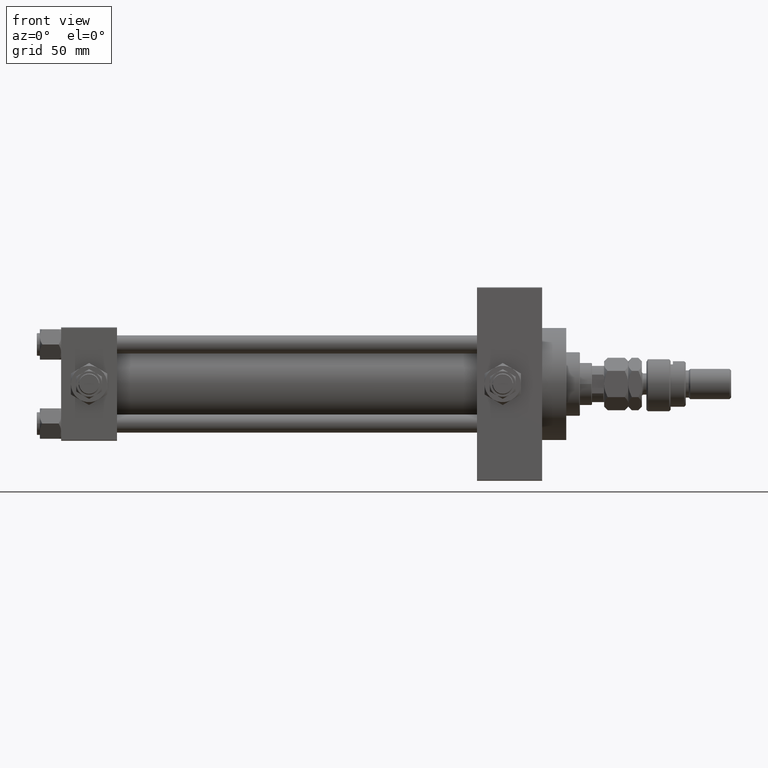
[diagram: clean part render]
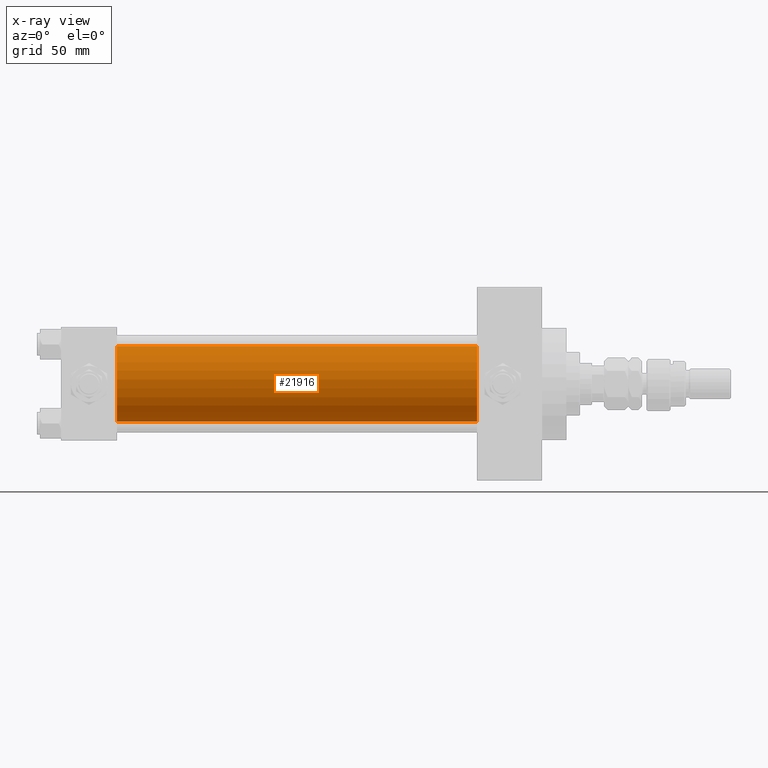
[diagram: x-ray — body ghosted, one internal face saturated and labeled with its STEP entity id]
A machine part, front view, then the same camera in x-ray: the body is ghosted and one INTERNAL B-rep face — a face not visible from any outside direction — is saturated and labeled: STEP entity #21916.
In plain terms, the highlighted cylindrical surface (partial cylindrical patch) has radius 25 mm, axis along (-1, -0, -0).
Its self-contained STEP definition (entity closure, byte-faithful):
#1060 = VERTEX_POINT ( 'NONE', #29577 ) ;
#2184 = EDGE_LOOP ( 'NONE', ( #43075, #7477, #47961, #44824 ) ) ;
#3757 = DIRECTION ( 'NONE',  ( -1.000000000000000000, -0.000000000000000000, -0.000000000000000000 ) ) ;
#4270 = CARTESIAN_POINT ( 'NONE',  ( 274.9999999999999432, -2.602085213965210642E-15, 25.00000000000000000 ) ) ;
#7477 = ORIENTED_EDGE ( 'NONE', *, *, #23644, .T. ) ;
#8034 = CIRCLE ( 'NONE', #19792, 25.00000000000000000 ) ;
#9489 = DIRECTION ( 'NONE',  ( 0.000000000000000000, 0.000000000000000000, 1.000000000000000000 ) ) ;
#11143 = DIRECTION ( 'NONE',  ( -1.000000000000000000, -0.000000000000000000, -0.000000000000000000 ) ) ;
#12483 = CARTESIAN_POINT ( 'NONE',  ( 37.00000000000000000, -2.602085213965210642E-15, 0.000000000000000000 ) ) ;
#13341 = EDGE_CURVE ( 'NONE', #1060, #38957, #42750, .T. ) ;
#13434 = FACE_OUTER_BOUND ( 'NONE', #2184, .T. ) ;
#18305 = AXIS2_PLACEMENT_3D ( 'NONE', #12483, #28298, #44133 ) ;
#18517 = LINE ( 'NONE', #47264, #19425 ) ;
#19425 = VECTOR ( 'NONE', #11143, 1000.000000000000000 ) ;
#19792 = AXIS2_PLACEMENT_3D ( 'NONE', #40922, #45676, #21665 ) ;
#21665 = DIRECTION ( 'NONE',  ( 0.000000000000000000, 0.000000000000000000, -1.000000000000000000 ) ) ;
#21916 = ADVANCED_FACE ( 'NONE', ( #13434 ), #42419, .F. ) ;
#23644 = EDGE_CURVE ( 'NONE', #40760, #38957, #18517, .T. ) ;
#24843 = VERTEX_POINT ( 'NONE', #47222 ) ;
#28298 = DIRECTION ( 'NONE',  ( 1.000000000000000000, 0.000000000000000000, 0.000000000000000000 ) ) ;
#29577 = CARTESIAN_POINT ( 'NONE',  ( 37.00000000000000000, -2.602085213965210642E-15, 25.00000000000000000 ) ) ;
#34614 = EDGE_CURVE ( 'NONE', #24843, #40760, #8034, .T. ) ;
#38531 = VECTOR ( 'NONE', #3757, 1000.000000000000000 ) ;
#38957 = VERTEX_POINT ( 'NONE', #47935 ) ;
#39068 = LINE ( 'NONE', #4270, #38531 ) ;
#40760 = VERTEX_POINT ( 'NONE', #49962 ) ;
#40922 = CARTESIAN_POINT ( 'NONE',  ( 274.9999999999999432, -2.602085213965210642E-15, 0.000000000000000000 ) ) ;
#41636 = DIRECTION ( 'NONE',  ( -1.000000000000000000, -0.000000000000000000, -0.000000000000000000 ) ) ;
#42419 = CYLINDRICAL_SURFACE ( 'NONE', #48883, 25.00000000000000000 ) ;
#42750 = CIRCLE ( 'NONE', #18305, 25.00000000000000000 ) ;
#42833 = EDGE_CURVE ( 'NONE', #24843, #1060, #39068, .T. ) ;
#43075 = ORIENTED_EDGE ( 'NONE', *, *, #34614, .T. ) ;
#44133 = DIRECTION ( 'NONE',  ( 0.000000000000000000, 0.000000000000000000, -1.000000000000000000 ) ) ;
#44824 = ORIENTED_EDGE ( 'NONE', *, *, #42833, .F. ) ;
#45676 = DIRECTION ( 'NONE',  ( 1.000000000000000000, 0.000000000000000000, 0.000000000000000000 ) ) ;
#45865 = CARTESIAN_POINT ( 'NONE',  ( 274.9999999999999432, -2.602085213965210642E-15, 0.000000000000000000 ) ) ;
#47222 = CARTESIAN_POINT ( 'NONE',  ( 274.9999999999999432, -2.602085213965210642E-15, 25.00000000000000000 ) ) ;
#47264 = CARTESIAN_POINT ( 'NONE',  ( 274.9999999999999432, 4.595317839031724996E-16, -25.00000000000000000 ) ) ;
#47935 = CARTESIAN_POINT ( 'NONE',  ( 37.00000000000000000, 4.595317839031724996E-16, -25.00000000000000000 ) ) ;
#47961 = ORIENTED_EDGE ( 'NONE', *, *, #13341, .F. ) ;
#48883 = AXIS2_PLACEMENT_3D ( 'NONE', #45865, #41636, #9489 ) ;
#49962 = CARTESIAN_POINT ( 'NONE',  ( 274.9999999999999432, 4.595317839031724996E-16, -25.00000000000000000 ) ) ;